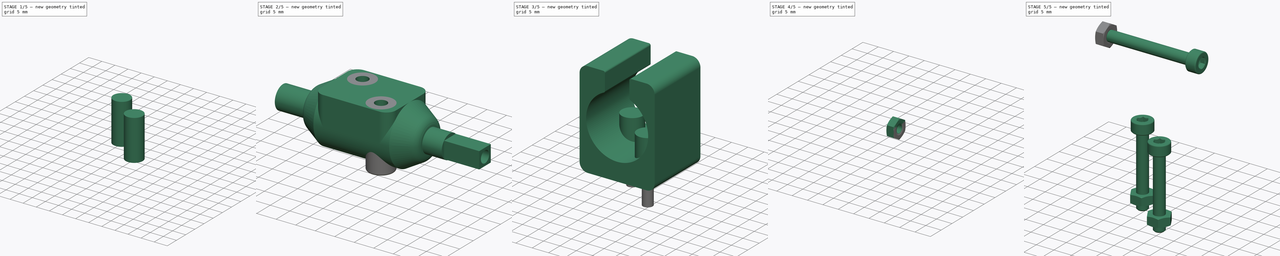
[diagram: build sequence overview — one tinted view per stage of 5, left to right]
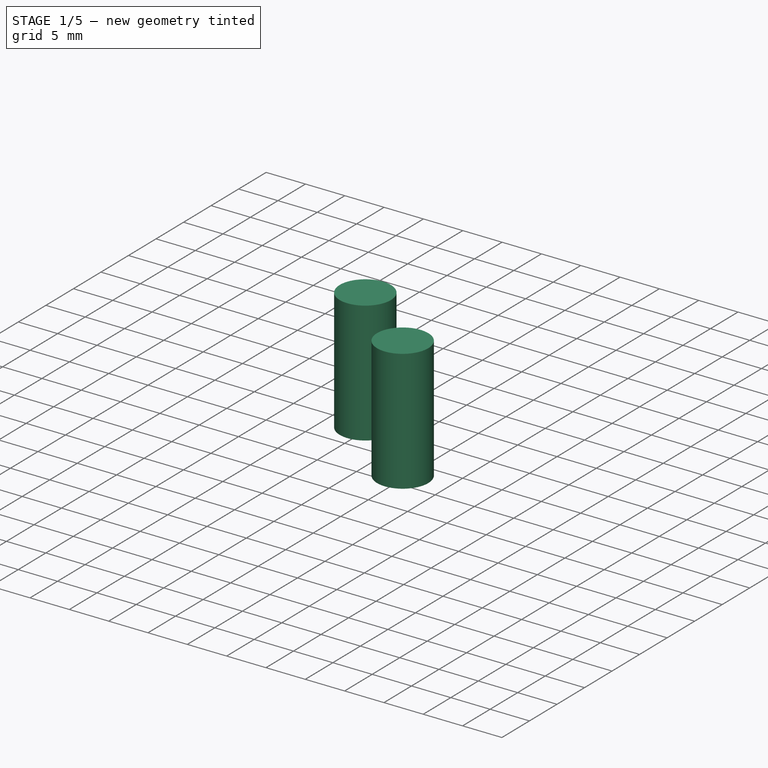
[diagram: stage 1 of 5 — iso view after this stage's code; geometry added in this stage tinted green]
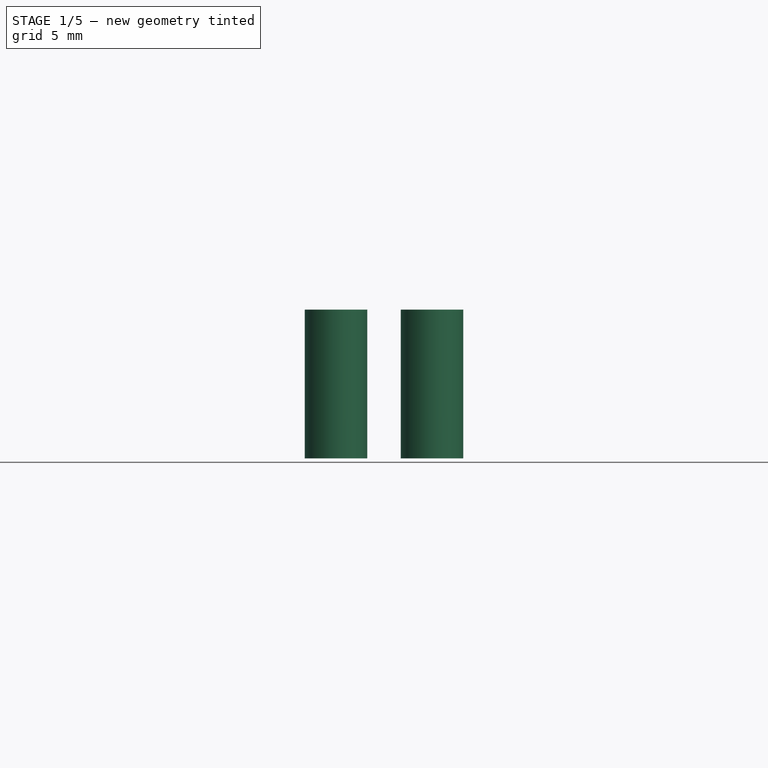
[diagram: stage 1 of 5 — front view after this stage's code; geometry added in this stage tinted green]
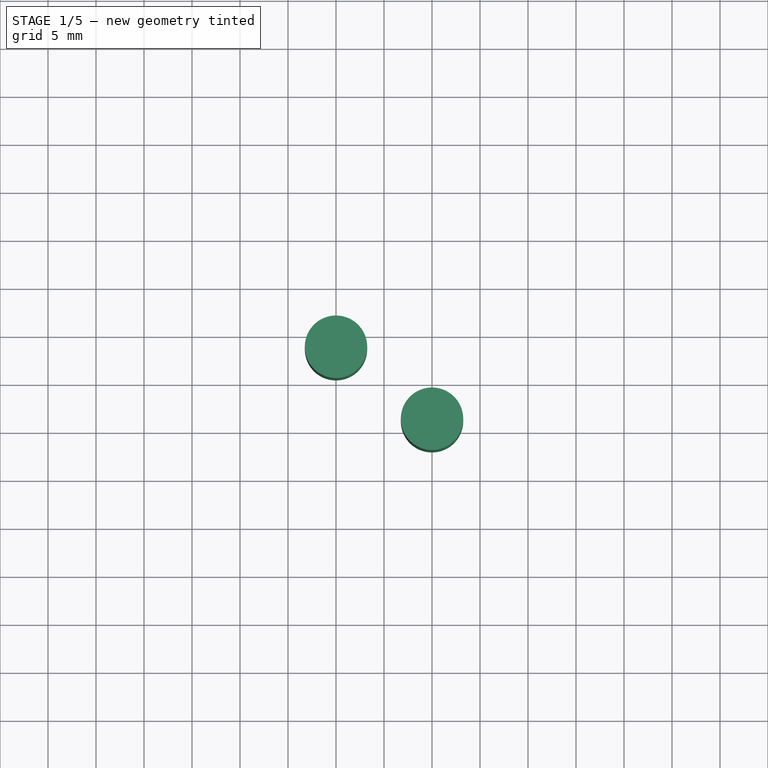
[diagram: stage 1 of 5 — top view after this stage's code; geometry added in this stage tinted green]
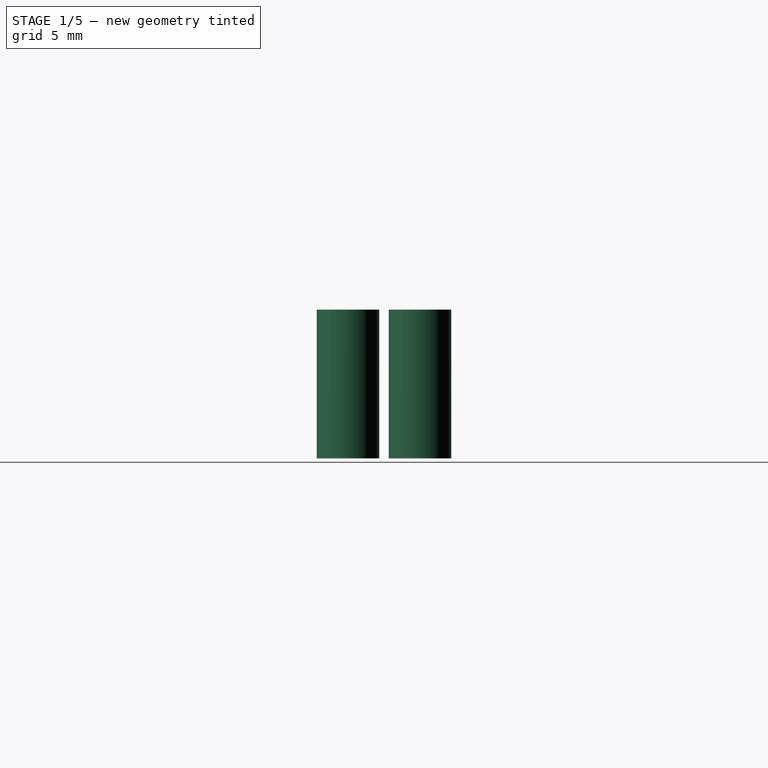
[diagram: stage 1 of 5 — right view after this stage's code; geometry added in this stage tinted green]
FCSTD DOCUMENT  (FreeCAD 0.20R29410 (Git))
Label: laser pointer mount
License: All rights reserved
LicenseURL: http://en.wikipedia.org/wiki/All_rights_reserved
objects: Part::Extrusion×8, Sketcher::SketchObject×7, Part::FeaturePython×6, Part::MultiFuse×3, Part::Cut×3, App::DocumentObjectGroup×2, Part::Revolution×1, Part::Fillet×1, Part::Cylinder×1
note: 30 computed .brp shape members not serialized (recipe doc carries the construction recipe); baked Part::Feature solids carry a one-line shape summary decoded from their .brp

FEATURE [Part::Extrusion] Extrude022
  Dir = (0,0,1)
  DirMode = 2
  FaceMakerClass = Part::FaceMakerBullseye
  LengthFwd = 7.5
  LengthRev = 0
  Solid = true
  Symmetric = false
FEATURE [Part::Revolution] Revolve002
  Angle = 360
  Axis = (1,0,0)
  Base = (0,0,0)
  FaceMakerClass = Part::FaceMakerBullseye
  Solid = true
  Symmetric = false
FEATURE [Sketcher::SketchObject] Sketch032
  ExternalGeometry = -> [Revolve002]
  FullyConstrained = true
  MapMode = 5
  Placement = pos=(20,0,0) rot=(0.57735,0.57735,0.57735;2.0944rad)
  Support = -> [Revolve002]
  sketch-geometry (6):
    g0: LineSegment StartX=-2.12132 StartY=-2.12132 StartZ=0 EndX=-2.12132 EndY=2.12132 EndZ=0
    g1: LineSegment StartX=-2.12132 StartY=2.12132 StartZ=0 EndX=2.12132 EndY=2.12132 EndZ=0
    g2: LineSegment StartX=2.12132 StartY=2.12132 StartZ=0 EndX=2.12132 EndY=-2.12132 EndZ=0
    g3: LineSegment StartX=2.12132 StartY=-2.12132 StartZ=0 EndX=-2.12132 EndY=-2.12132 EndZ=0
    g4: GeomPoint X=0 Y=0 Z=0
    g5: Circle CenterX=0 CenterY=0 CenterZ=0 NormalX=0 NormalY=0 NormalZ=1 AngleXU=0 Radius=1.5
  constraints (14):
    c: Coincident(g0,g1)
    c: Coincident(g1,g2)
    c: Coincident(g2,g3)
    c: Coincident(g3,g0)
    c: Horizontal(g1)
    c: Horizontal(g3)
    c: Vertical(g0)
    c: Vertical(g2)
    c: Symmetric(g1,g0,g4)
    c: Coincident(g4,g-1)
    c: Equal(g2,g1)
    c: PointOnObject(g1,g-3)
    c: Coincident(g5,g4)
    c: Diameter(g5) = 3
FEATURE [Part::Extrusion] Extrude023
  Base = -> Sketch032
  Dir = (1,0,0)
  DirMode = 2
  FaceMakerClass = Part::FaceMakerBullseye
  LengthFwd = 9
  LengthRev = 0
  Solid = true
  Symmetric = false
FEATURE [Part::MultiFuse] Fusion009  label="nya"
  Shapes = -> [Revolve002,Extrude022,Extrude023]
FEATURE [Sketcher::SketchObject] Sketch034
  ExternalGeometry = -> [Fusion009]
  FullyConstrained = true
  MapMode = 5
  Placement = pos=(0,0,7.5) rot=(0,0,1;0rad)
  Support = -> [Fusion009]
  sketch-geometry (7):
    g0: LineSegment StartX=5 StartY=-3.75 StartZ=0 EndX=5 EndY=3.75 EndZ=0
    g1: LineSegment StartX=5 StartY=3.75 StartZ=0 EndX=-5 EndY=3.75 EndZ=0
    g2: LineSegment StartX=-5 StartY=3.75 StartZ=0 EndX=-5 EndY=-3.75 EndZ=0
    g3: LineSegment StartX=-5 StartY=-3.75 StartZ=0 EndX=5 EndY=-3.75 EndZ=0
    g4: GeomPoint X=0 Y=0 Z=0
    g5: Circle CenterX=-5 CenterY=3.75 CenterZ=0 NormalX=0 NormalY=0 NormalZ=1 AngleXU=0 Radius=3.25
    g6: Circle CenterX=5 CenterY=-3.75 CenterZ=0 NormalX=0 NormalY=0 NormalZ=1 AngleXU=0 Radius=3.25
  constraints (16):
    c: Coincident(g0,g1)
    c: Coincident(g1,g2)
    c: Coincident(g2,g3)
    c: Coincident(g3,g0)
    c: Horizontal(g1)
    c: Horizontal(g3)
    c: Vertical(g0)
    c: Vertical(g2)
    c: Symmetric(g1,g0,g4)
    c: Coincident(g4,g-1)
    c: Coincident(g5,g1)
    c: Coincident(g6,g0)
    c: Equal(g6,g5)
    c: Diameter(g6) = 6.5
    c: DistanceY(g0,g0) = 7.5
    c: DistanceX(g1,g1) = 10
FEATURE [Part::Extrusion] Extrude025
  Base = -> Sketch034
  Dir = (0,0,1)
  DirMode = 2
  FaceMakerClass = Part::FaceMakerBullseye
  LengthFwd = 0
  LengthRev = 15.5
  Solid = true
  Symmetric = false
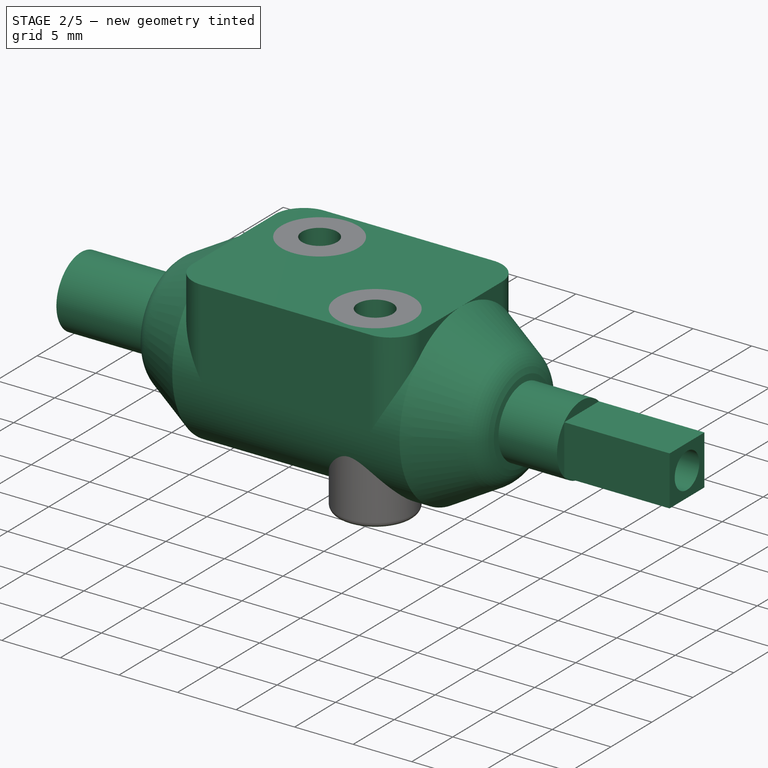
[diagram: stage 2 of 5 — iso view after this stage's code; geometry added in this stage tinted green]
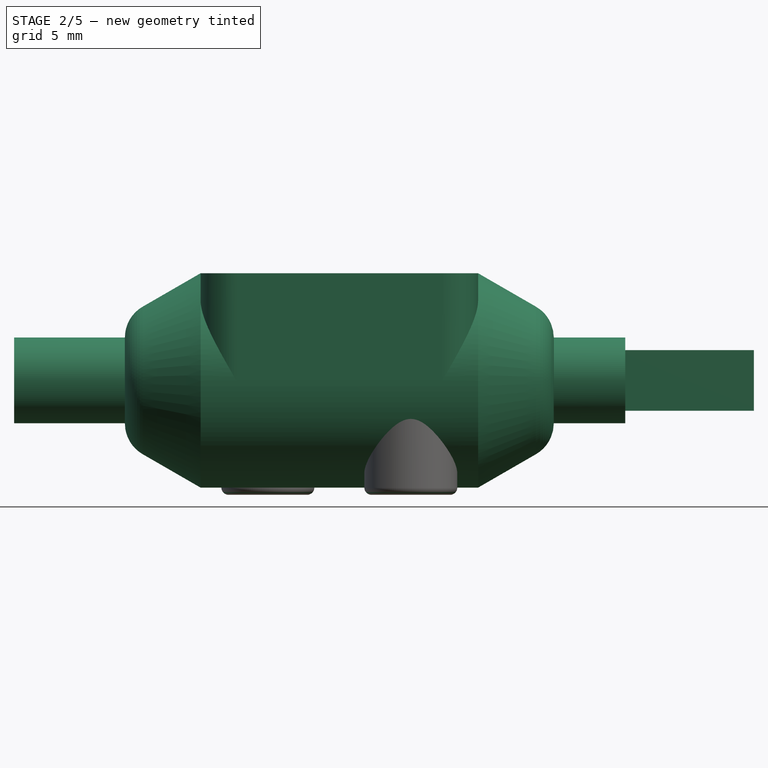
[diagram: stage 2 of 5 — front view after this stage's code; geometry added in this stage tinted green]
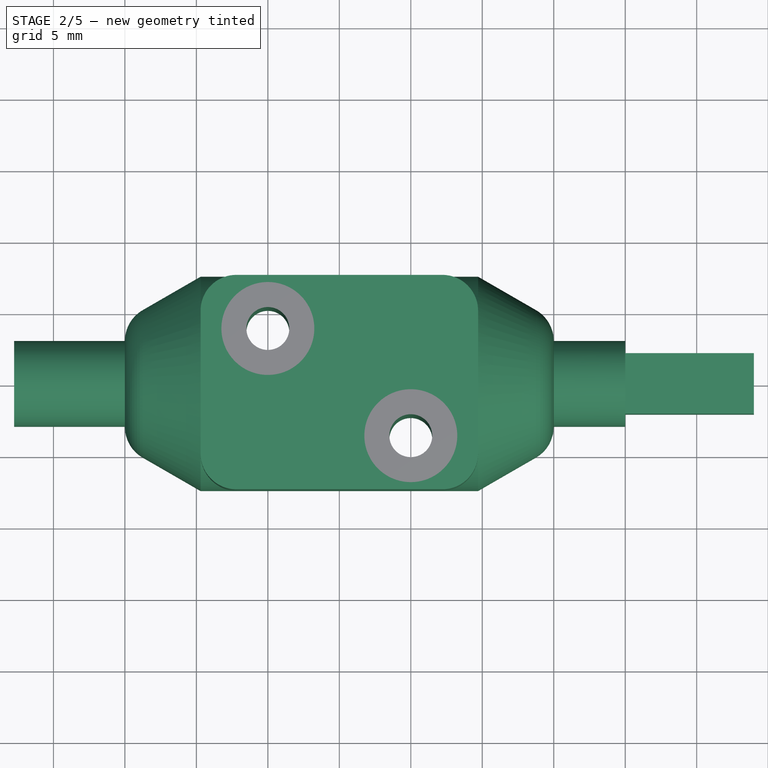
[diagram: stage 2 of 5 — top view after this stage's code; geometry added in this stage tinted green]
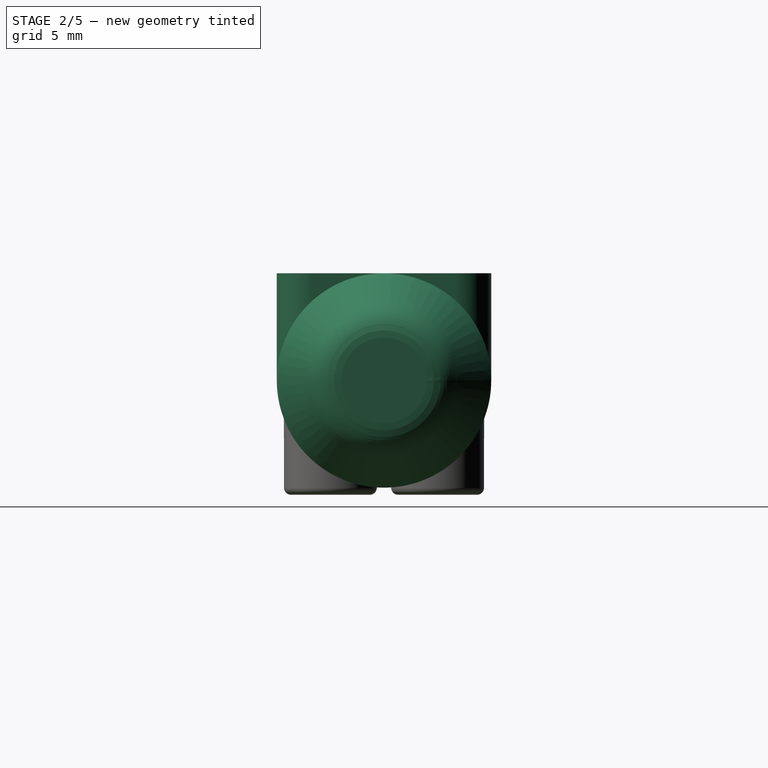
[diagram: stage 2 of 5 — right view after this stage's code; geometry added in this stage tinted green]
FEATURE [Sketcher::SketchObject] Sketch033
  ExternalGeometry = -> [Fusion009]
  FullyConstrained = true
  MapMode = 5
  Placement = pos=(0,0,7.5) rot=(0,0,1;0rad)
  Support = -> [Fusion009]
  sketch-geometry (7):
    g0: LineSegment StartX=5 StartY=-3.75 StartZ=0 EndX=5 EndY=3.75 EndZ=0
    g1: LineSegment StartX=5 StartY=3.75 StartZ=0 EndX=-5 EndY=3.75 EndZ=0
    g2: LineSegment StartX=-5 StartY=3.75 StartZ=0 EndX=-5 EndY=-3.75 EndZ=0
    g3: LineSegment StartX=-5 StartY=-3.75 StartZ=0 EndX=5 EndY=-3.75 EndZ=0
    g4: GeomPoint X=0 Y=0 Z=0
    g5: Circle CenterX=-5 CenterY=3.75 CenterZ=0 NormalX=0 NormalY=0 NormalZ=1 AngleXU=0 Radius=1.5
    g6: Circle CenterX=5 CenterY=-3.75 CenterZ=0 NormalX=0 NormalY=0 NormalZ=1 AngleXU=0 Radius=1.5
  constraints (16):
    c: Coincident(g0,g1)
    c: Coincident(g1,g2)
    c: Coincident(g2,g3)
    c: Coincident(g3,g0)
    c: Horizontal(g1)
    c: Horizontal(g3)
    c: Vertical(g0)
    c: Vertical(g2)
    c: Symmetric(g1,g0,g4)
    c: Coincident(g4,g-1)
    c: Coincident(g5,g1)
    c: Coincident(g6,g0)
    c: Equal(g6,g5)
    c: Diameter(g6) = 3
    c: DistanceY(g0,g0) = 7.5
    c: DistanceX(g1,g1) = 10
FEATURE [Part::Extrusion] Extrude024
  Base = -> Sketch033
  Dir = (0,0,1)
  DirMode = 2
  FaceMakerClass = Part::FaceMakerBullseye
  LengthFwd = 0
  LengthRev = 40
  Solid = true
  Symmetric = false
FEATURE [Part::Fillet] Fillet
  Base = -> Extrude025
  Edges = 2 edges r=0.5: [Edge2,Edge5]
FEATURE [Part::MultiFuse] Fusion010
  Shapes = -> [Fillet,Fusion009]
FEATURE [Part::Cut] Cut008  label="moving bracket w/ m3 mounting holes"
  Base = -> Fusion010
  Tool = -> Extrude024
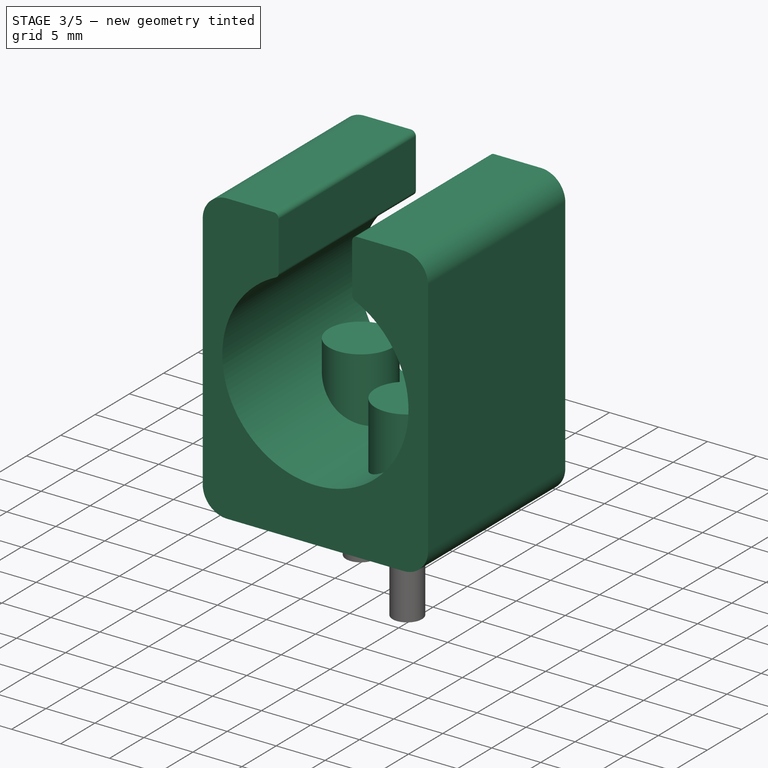
[diagram: stage 3 of 5 — iso view after this stage's code; geometry added in this stage tinted green]
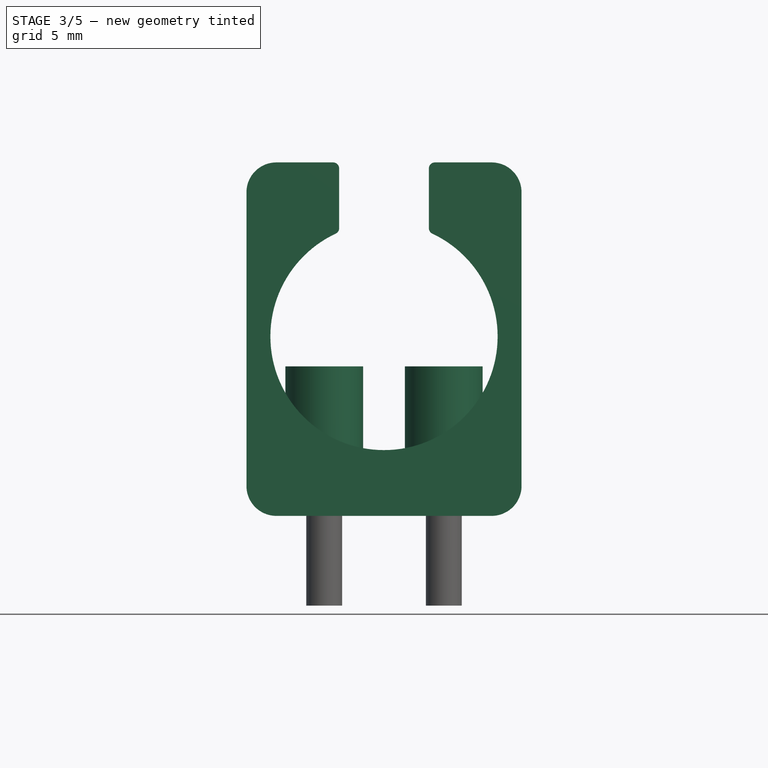
[diagram: stage 3 of 5 — front view after this stage's code; geometry added in this stage tinted green]
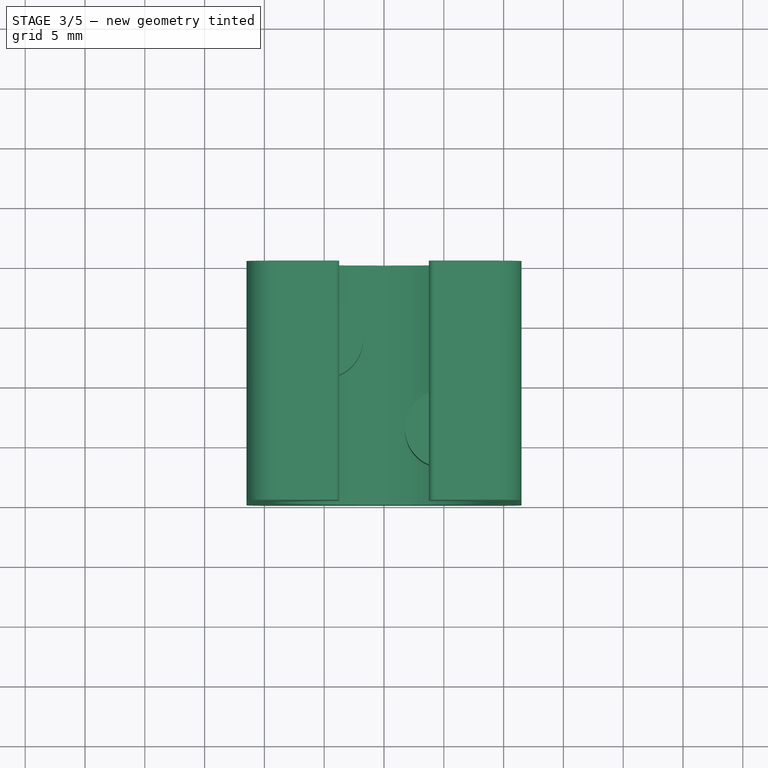
[diagram: stage 3 of 5 — top view after this stage's code; geometry added in this stage tinted green]
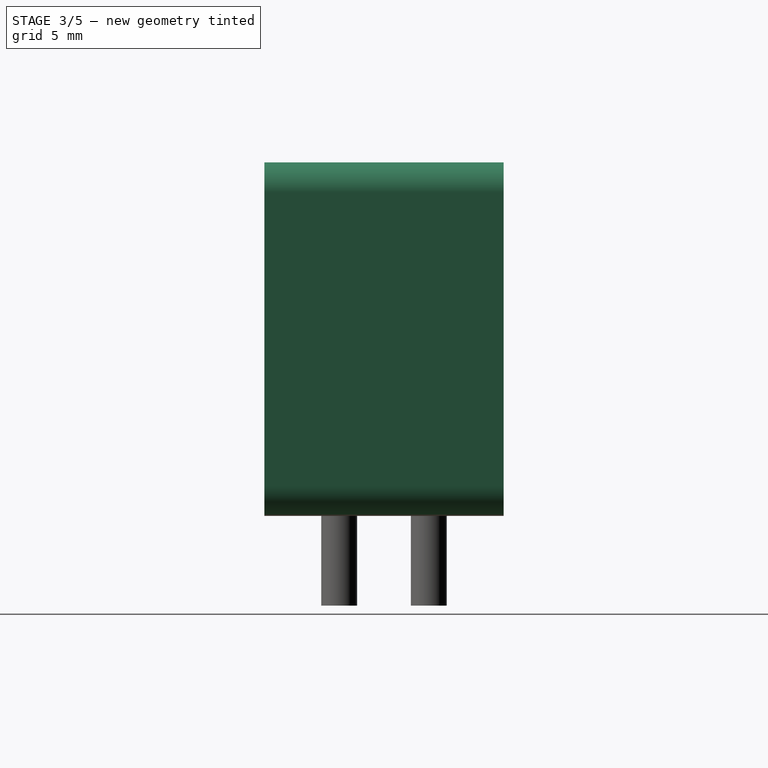
[diagram: stage 3 of 5 — right view after this stage's code; geometry added in this stage tinted green]
FEATURE [Part::Cylinder] Cylinder  label="model laser pointer"
  Angle = 360
  AttacherType = Attacher::AttachEngine3D
  FirstAngle = 0
  Height = 100
  Placement = pos=(0,50,22.5) rot=(1,0,0;1.5708rad)
  Radius = 9.23
  SecondAngle = 0
FEATURE [App::DocumentObjectGroup] Group  label="ref"
  Group = -> [Cut008,Cylinder]
FEATURE [Sketcher::SketchObject] Sketch
  ExternalGeometry = -> [Cut008,Cylinder]
  FullyConstrained = true
  Placement = pos=(0,0,0) rot=(1,0,0;1.5708rad)
  sketch-geometry (19):
    g0: ArcOfCircle CenterX=-9 CenterY=34.5519 CenterZ=0 NormalX=0 NormalY=0 NormalZ=1 AngleXU=0 Radius=2.5 StartAngle=1.5708 EndAngle=3.14159
    g1: LineSegment StartX=-9 StartY=37.0519 StartZ=0 EndX=-4.25 EndY=37.0519 EndZ=0
    g2: ArcOfCircle CenterX=9 CenterY=34.5519 CenterZ=0 NormalX=0 NormalY=0 NormalZ=1 AngleXU=0 Radius=2.5 StartAngle=8e-16 EndAngle=1.5708
    g3: LineSegment StartX=11.5 StartY=34.5519 StartZ=0 EndX=11.5 EndY=10 EndZ=0
    g4: ArcOfCircle CenterX=9 CenterY=10 CenterZ=0 NormalX=0 NormalY=0 NormalZ=1 AngleXU=0 Radius=2.5 StartAngle=4.71239 EndAngle=6.28319
    g5: LineSegment StartX=9 StartY=7.5 StartZ=0 EndX=-9 EndY=7.5 EndZ=0
    g6: ArcOfCircle CenterX=-9 CenterY=10 CenterZ=0 NormalX=0 NormalY=0 NormalZ=1 AngleXU=0 Radius=2.5 StartAngle=3.14159 EndAngle=4.71239
    g7: LineSegment StartX=-11.5 StartY=10 StartZ=0 EndX=-11.5 EndY=34.5519 EndZ=0
    g8: GeomPoint X=-11.5 Y=37.0519 Z=0
    g9: GeomPoint X=11.5 Y=7.5 Z=0
    g10: ArcOfCircle CenterX=0 CenterY=22.5 CenterZ=0 NormalX=0 NormalY=0 NormalZ=1 AngleXU=0 Radius=9.5 StartAngle=4.71239 EndAngle=7.41502
    g11: LineSegment StartX=-3.75 StartY=31.5519 StartZ=0 EndX=-3.75 EndY=36.5519 EndZ=0
    g12: LineSegment StartX=3.75 StartY=36.5519 StartZ=0 EndX=3.75 EndY=31.5519 EndZ=0
    g13: LineSegment StartX=4.25 StartY=37.0519 StartZ=0 EndX=9 EndY=37.0519 EndZ=0
    g14: ArcOfCircle CenterX=0 CenterY=22.5 CenterZ=0 NormalX=0 NormalY=0 NormalZ=1 AngleXU=0 Radius=9.5 StartAngle=2.00976 EndAngle=4.71239
    g15: ArcOfCircle CenterX=-4.25 CenterY=31.5519 CenterZ=0 NormalX=0 NormalY=0 NormalZ=1 AngleXU=0 Radius=0.5 StartAngle=5.15135 EndAngle=6.28319
    g16: ArcOfCircle CenterX=-4.25 CenterY=36.5519 CenterZ=0 NormalX=0 NormalY=0 NormalZ=1 AngleXU=0 Radius=0.5 StartAngle=4.2e-15 EndAngle=1.5708
    g17: ArcOfCircle CenterX=4.25 CenterY=36.5519 CenterZ=0 NormalX=0 NormalY=0 NormalZ=1 AngleXU=0 Radius=0.5 StartAngle=1.5708 EndAngle=3.14159
    g18: ArcOfCircle CenterX=4.25 CenterY=31.5519 CenterZ=0 NormalX=0 NormalY=0 NormalZ=1 AngleXU=0 Radius=0.5 StartAngle=3.14159 EndAngle=4.27343
  constraints (48):
    c: Tangent(g0,g1) = 1.5708
    c: Tangent(g2,g3) = 1.5708
    c: Tangent(g3,g4) = 1.5708
    c: Tangent(g4,g5) = 1.5708
    c: Tangent(g5,g6) = 1.5708
    c: Tangent(g6,g7) = 1.5708
    c: Tangent(g7,g0) = 1.5708
    c: Horizontal(g1)
    c: Horizontal(g5)
    c: Vertical(g3)
    c: Vertical(g7)
    c: Equal(g0,g2)
    c: Equal(g2,g4)
    c: Equal(g4,g6)
    c: PointOnObject(g8,g1)
    c: PointOnObject(g8,g7)
    c: PointOnObject(g9,g3)
    c: PointOnObject(g9,g5)
    c: Diameter(g4) = 5
    c: PointOnObject(g-4,g5)
    c: Diameter(g10) = 19
    c: Vertical(g11)
    c: Vertical(g12)
    c: Equal(g12,g11)
    c: Equal(g10,g14)
    c: Coincident(g10,g14)
    c: Tangent(g11,g15) = -1.5708
    c: Tangent(g14,g15) = 1.5708
    c: Tangent(g11,g16) = -1.5708
    c: Tangent(g1,g16) = 1.5708
    c: Tangent(g12,g17) = -1.5708
    c: Tangent(g13,g17) = 1.5708
    c: Horizontal(g13)
    c: Tangent(g10,g18) = 1.5708
    c: Tangent(g12,g18) = -1.5708
    c: Equal(g18,g17)
    c: Equal(g18,g15)
    c: Equal(g18,g16)
    c: Diameter(g18) = 1
    c: DistanceY(g11,g11) = 5
    c: PointOnObject(g1,g13)
    c: DistanceX(g11,g12) = 7.5
    c: Tangent(g13,g2) = 1.5708
    c: Coincident(g10,g-5)
    c: PointOnObject(g14,g-2)
    c: PointOnObject(g10,g-2)
    c: DistanceX(g5) = -9
    c: DistanceX(g4) = 9
FEATURE [Part::Extrusion] Extrude
  Base = -> Sketch
  Dir = (0,-1,-3e-16)
  DirMode = 2
  FaceMakerClass = Part::FaceMakerBullseye
  LengthFwd = 10
  LengthRev = 10
  Solid = true
  Symmetric = false
FEATURE [Sketcher::SketchObject] Sketch036
  ExternalGeometry = -> [Cut008]
  FullyConstrained = true
  sketch-geometry (2):
    g0: Circle CenterX=-5 CenterY=3.75 CenterZ=0 NormalX=0 NormalY=0 NormalZ=1 AngleXU=0 Radius=1.5
    g1: Circle CenterX=5 CenterY=-3.75 CenterZ=0 NormalX=0 NormalY=0 NormalZ=1 AngleXU=0 Radius=1.5
  constraints (4):
    c: Coincident(g0,g-3)
    c: Coincident(g1,g-4)
    c: Equal(g0,g1)
    c: Diameter(g0) = 3
FEATURE [Part::Extrusion] Extrude027
  Base = -> Sketch036
  Dir = (0,0,1)
  DirMode = 2
  FaceMakerClass = Part::FaceMakerBullseye
  LengthFwd = 20
  LengthRev = 0
  Solid = true
  Symmetric = false
FEATURE [Sketcher::SketchObject] Sketch037
  ExternalGeometry = -> [Cut008]
  FullyConstrained = true
  sketch-geometry (2):
    g0: Circle CenterX=-5 CenterY=3.75 CenterZ=0 NormalX=0 NormalY=0 NormalZ=1 AngleXU=0 Radius=3.25
    g1: Circle CenterX=5 CenterY=-3.75 CenterZ=0 NormalX=0 NormalY=0 NormalZ=1 AngleXU=0 Radius=3.25
  constraints (4):
    c: Coincident(g0,g-3)
    c: Coincident(g1,g-4)
    c: Equal(g0,g1)
    c: Diameter(g0) = 6.5
FEATURE [Part::Extrusion] Extrude028
  Base = -> Sketch037
  Dir = (0,0,1)
  DirMode = 2
  FaceMakerClass = Part::FaceMakerBullseye
  LengthFwd = 10
  LengthRev = 0
  Placement = pos=(0,0,10) rot=(0,0,1;0rad)
  Solid = true
  Symmetric = false
FEATURE [Part::MultiFuse] Fusion
  Shapes = -> [Extrude028,Extrude027]
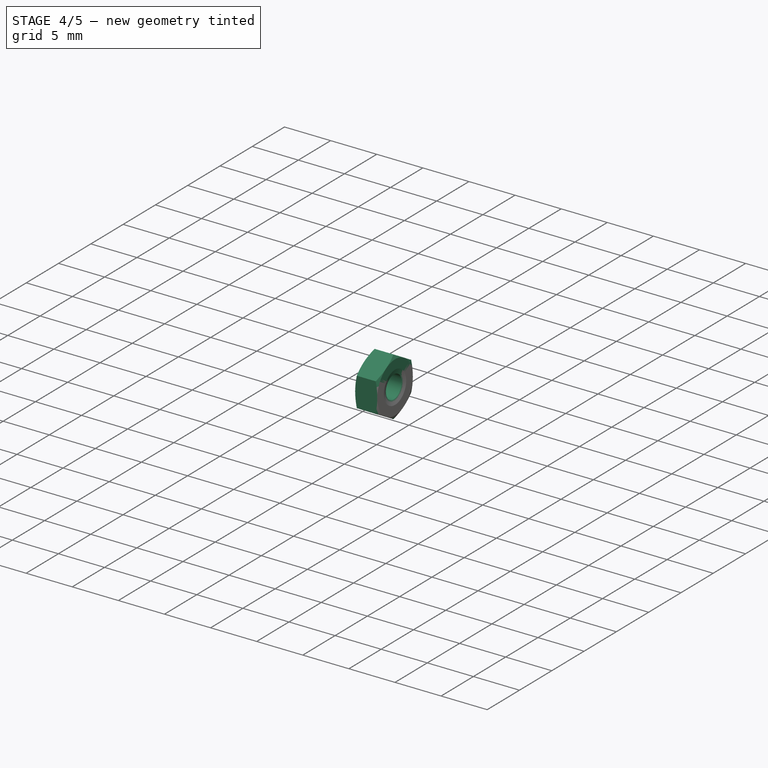
[diagram: stage 4 of 5 — iso view after this stage's code; geometry added in this stage tinted green]
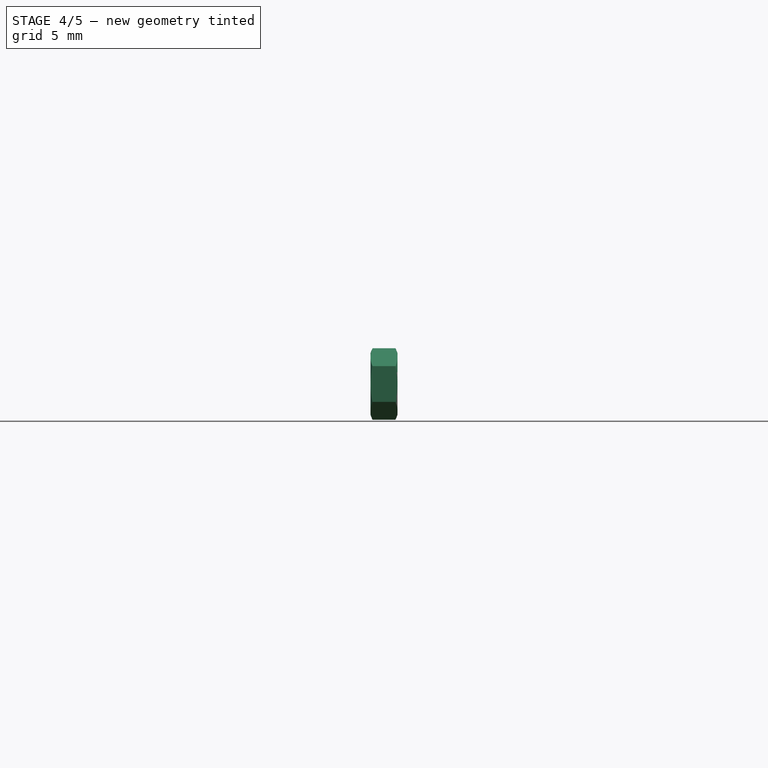
[diagram: stage 4 of 5 — front view after this stage's code; geometry added in this stage tinted green]
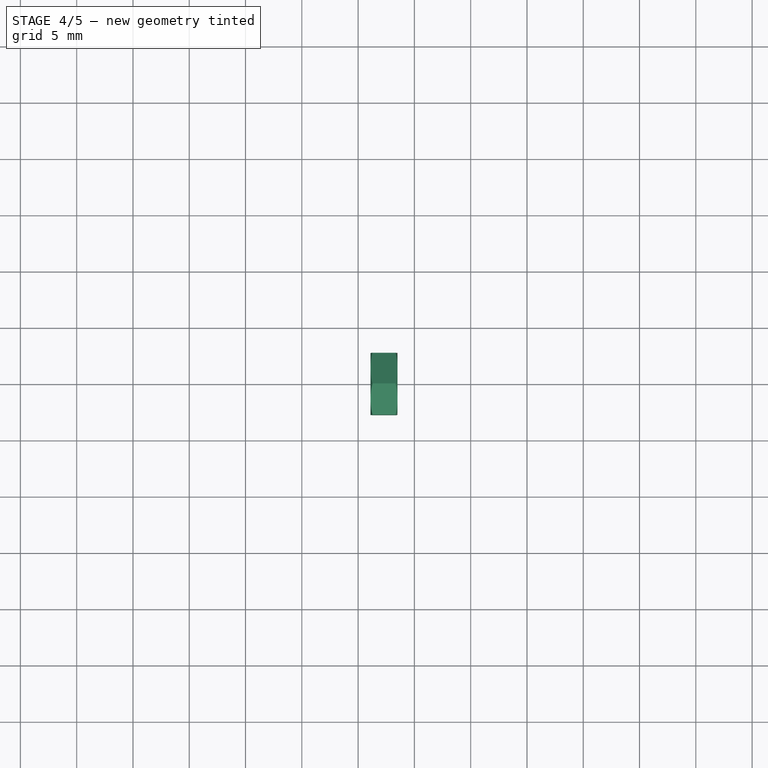
[diagram: stage 4 of 5 — top view after this stage's code; geometry added in this stage tinted green]
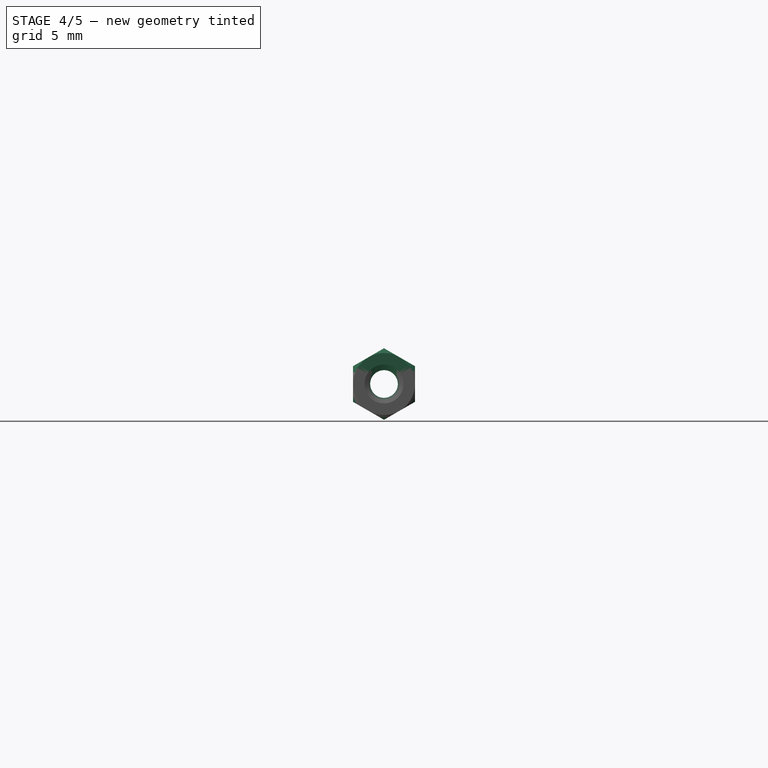
[diagram: stage 4 of 5 — right view after this stage's code; geometry added in this stage tinted green]
FEATURE [Sketcher::SketchObject] Sketch035
  ExternalGeometry = -> [Extrude]
  FullyConstrained = true
  Placement = pos=(0,0,0) rot=(0.57735,0.57735,0.57735;2.0944rad)
  sketch-geometry (6):
    g0: LineSegment StartX=10 StartY=31.5519 StartZ=0 EndX=10 EndY=36.5519 EndZ=0
    g1: LineSegment StartX=10 StartY=36.5519 StartZ=0 EndX=-10 EndY=36.5519 EndZ=0
    g2: LineSegment StartX=-10 StartY=36.5519 StartZ=0 EndX=-10 EndY=31.5519 EndZ=0
    g3: LineSegment StartX=-10 StartY=31.5519 StartZ=0 EndX=10 EndY=31.5519 EndZ=0
    g4: GeomPoint X=-5.8e-15 Y=34.0519 Z=0
    g5: Circle CenterX=-5.8e-15 CenterY=34.0519 CenterZ=0 NormalX=0 NormalY=0 NormalZ=1 AngleXU=0 Radius=1.5
  constraints (13):
    c: Coincident(g0,g1)
    c: Coincident(g1,g2)
    c: Coincident(g2,g3)
    c: Coincident(g3,g0)
    c: Horizontal(g1)
    c: Horizontal(g3)
    c: Vertical(g0)
    c: Vertical(g2)
    c: Symmetric(g1,g0,g4)
    c: Coincident(g1,g-4)
    c: Coincident(g0,g-3)
    c: Coincident(g5,g4)
    c: Diameter(g5) = 3
FEATURE [Part::Extrusion] Extrude026
  Base = -> Sketch035
  Dir = (1,0,0)
  DirMode = 2
  FaceMakerClass = Part::FaceMakerBullseye
  LengthFwd = 20
  LengthRev = 20
  Solid = true
  Symmetric = false
FEATURE [Part::Cut] Cut
  Base = -> Extrude
  Tool = -> Fusion
FEATURE [Part::Cut] Cut009  label="laser pointer holder"
  Base = -> Cut
  Tool = -> Extrude026
FEATURE [Part::FeaturePython] Nut  label="M3-Nut002"  # Fasteners workbench fastener (typed FeaturePython)
  Placement = pos=(-11.5,-5.8e-15,34.0519) rot=(0,-1,0;1.5708rad)
  baseObject = -> Cut009 [Edge48]
  diameter = 4
  invert = false
  leftHanded = false
  matchOuter = false
  offset = 0
  thread = false
  type = 31
FEATURE [App::DocumentObjectGroup] Group001  label="fastners"
  Group = -> [Nut001,Nut002,Nut,Screw002,Screw001,Screw]
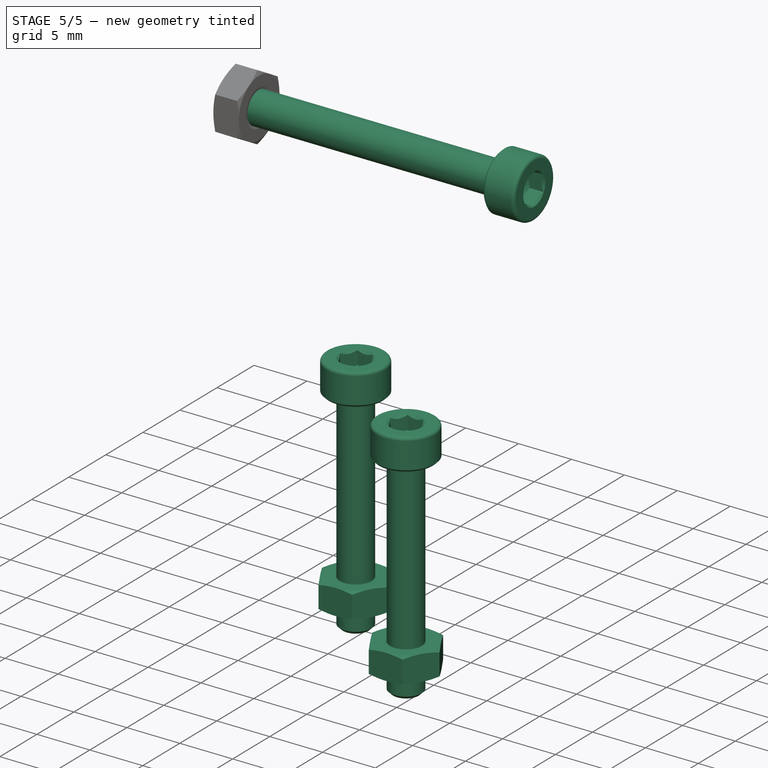
[diagram: stage 5 of 5 — iso view after this stage's code; geometry added in this stage tinted green]
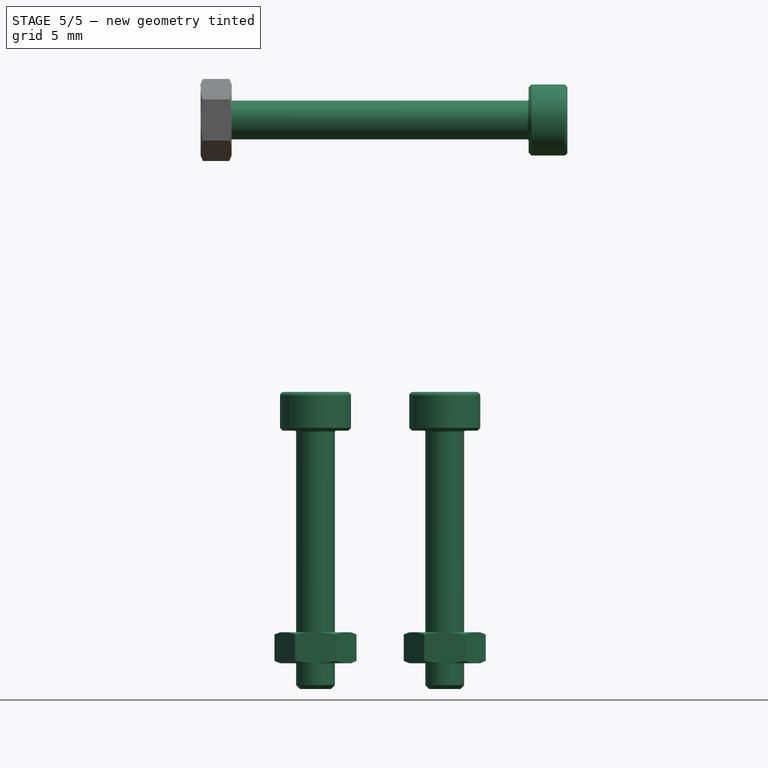
[diagram: stage 5 of 5 — front view after this stage's code; geometry added in this stage tinted green]
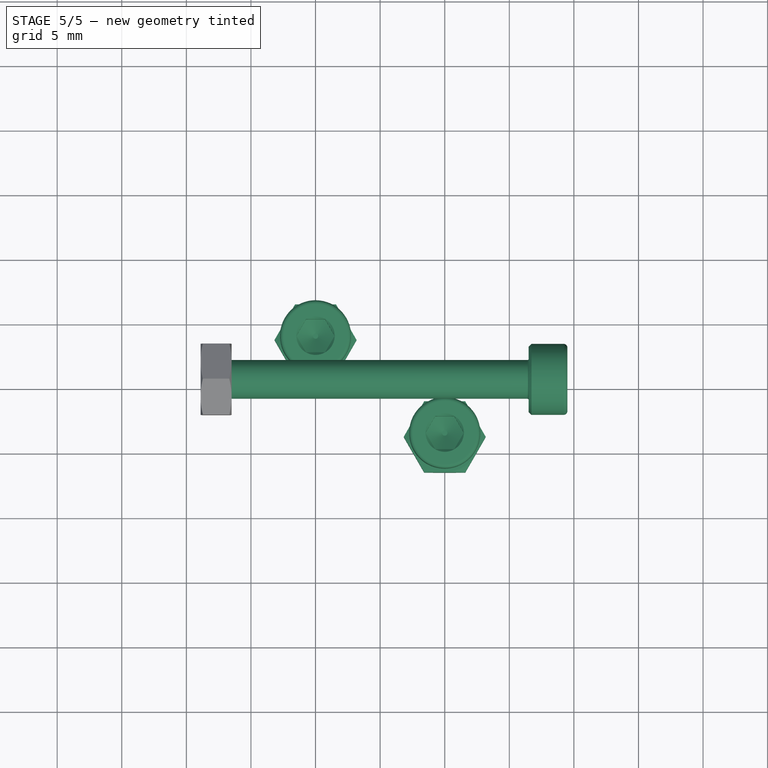
[diagram: stage 5 of 5 — top view after this stage's code; geometry added in this stage tinted green]
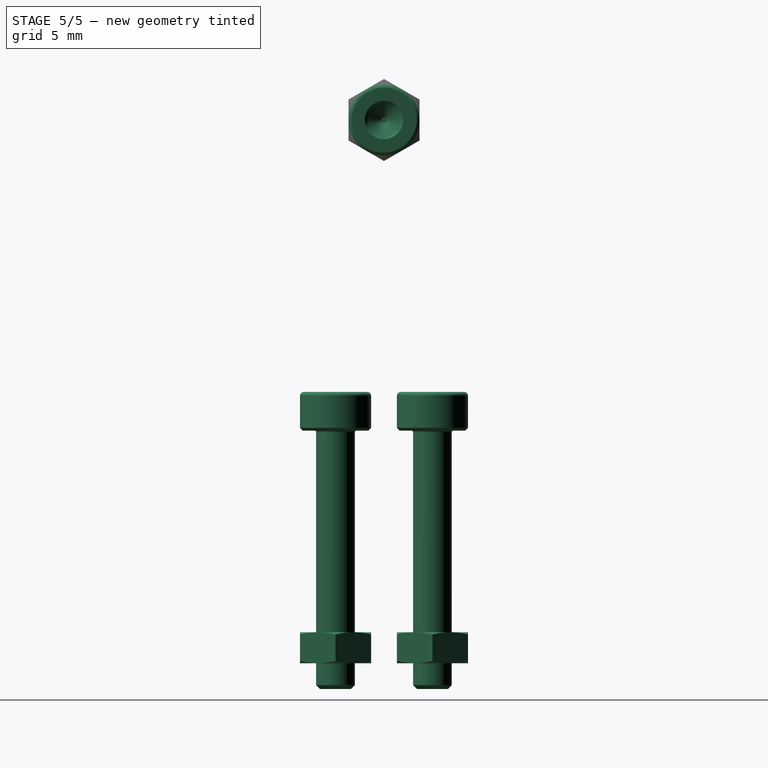
[diagram: stage 5 of 5 — right view after this stage's code; geometry added in this stage tinted green]
FEATURE [Part::FeaturePython] Screw  label="M3x20-Screw"  # Fasteners workbench fastener (typed FeaturePython)
  Placement = pos=(5,-3.75,10) rot=(0,0,1;0rad)
  baseObject = -> Cut [Edge68]
  diameter = 4
  invert = true
  leftHanded = false
  length = 7
  lengthCustom = 20
  matchOuter = false
  offset = 0
  thread = false
  type = 74
FEATURE [Part::FeaturePython] Screw001  label="M3x20-Screw001"  # Fasteners workbench fastener (typed FeaturePython)
  Placement = pos=(-5,3.75,10) rot=(0,0,1;0rad)
  baseObject = -> Cut [Edge60]
  diameter = 4
  invert = true
  leftHanded = false
  length = 7
  lengthCustom = 20
  matchOuter = false
  offset = 0
  thread = false
  type = 74
FEATURE [Part::FeaturePython] Screw002  label="M3x25-Screw"  # Fasteners workbench fastener (typed FeaturePython)
  Placement = pos=(11.5,-5.8e-15,34.0519) rot=(0,1,0;1.5708rad)
  baseObject = -> Cut009 [Edge60]
  diameter = 4
  invert = true
  leftHanded = false
  length = 8
  lengthCustom = 25
  matchOuter = false
  offset = 0
  thread = false
  type = 74
FEATURE [Part::FeaturePython] Nut001  label="M3-Nut"  # Fasteners workbench fastener (typed FeaturePython)
  Placement = pos=(-5,3.75,-8) rot=(0,0,1;0rad)
  baseObject = -> Cut008 [Edge58]
  diameter = 4
  invert = false
  leftHanded = false
  matchOuter = false
  offset = 0
  thread = false
  type = 31
FEATURE [Part::FeaturePython] Nut002  label="M3-Nut001"  # Fasteners workbench fastener (typed FeaturePython)
  Placement = pos=(5,-3.75,-8) rot=(0,0,1;0rad)
  baseObject = -> Cut008 [Edge5]
  diameter = 4
  invert = false
  leftHanded = false
  matchOuter = false
  offset = 0
  thread = false
  type = 31
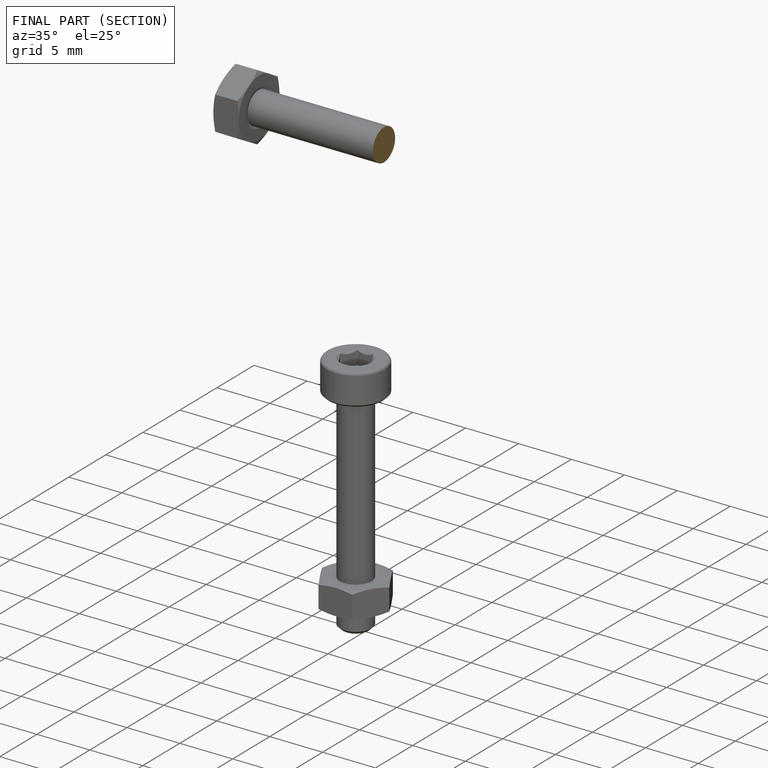
[diagram: finished part — half-section view (interior)]
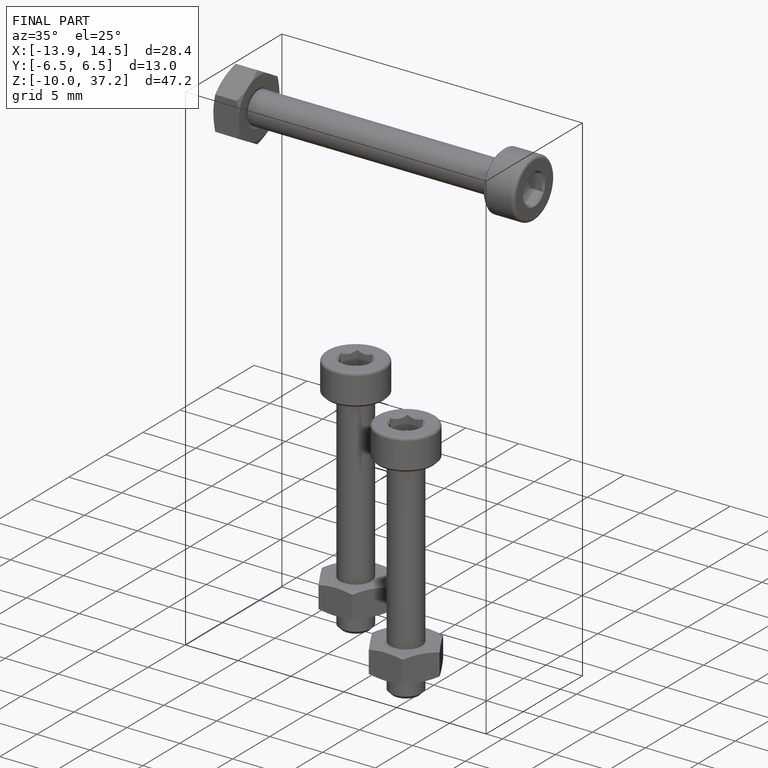
[diagram: finished part — iso view with bounding-box wireframe]
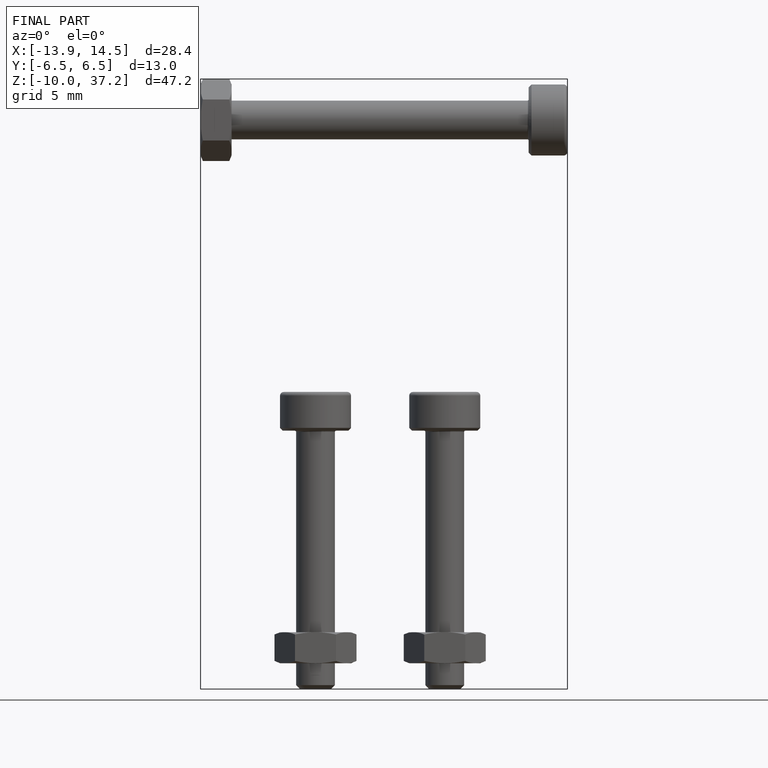
[diagram: finished part — front view with bounding-box wireframe]
